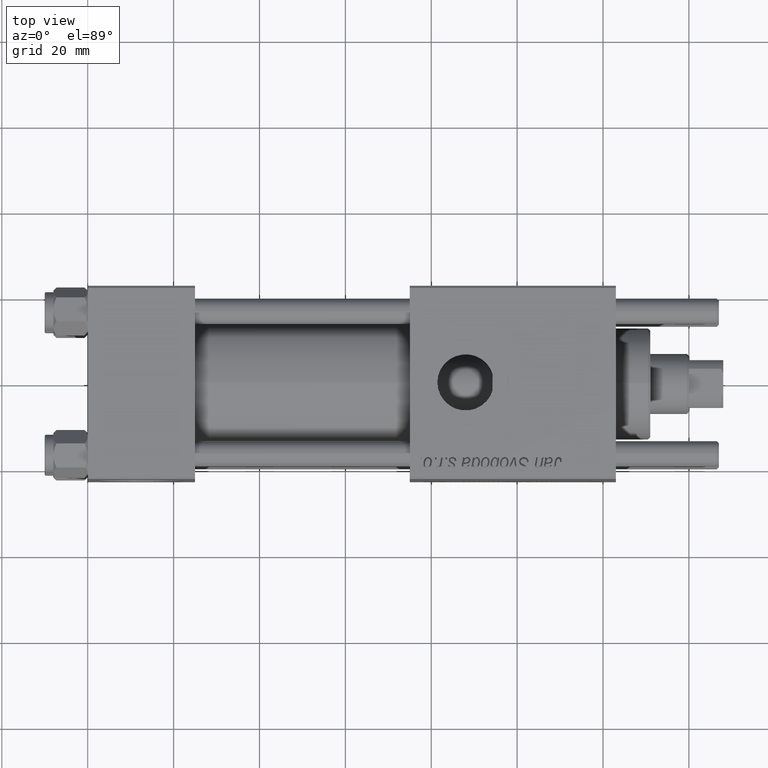
[diagram: clean part render]
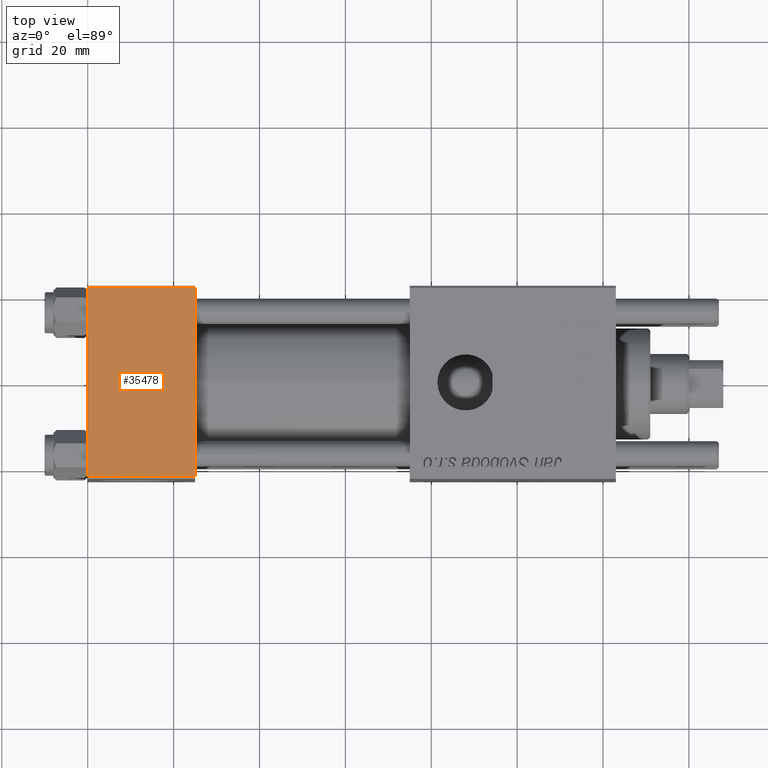
[diagram: same view with one face highlighted and labeled with its STEP entity id]
A machine part, top view. The second image highlights one B-rep face of the part: STEP entity #35478.
In plain terms, the highlighted planar face has unit normal (0, 0, -1).
Its self-contained STEP definition (entity closure, byte-faithful):
#536 = FACE_OUTER_BOUND ( 'NONE', #34976, .T. ) ;
#1600 = LINE ( 'NONE', #32297, #39583 ) ;
#9929 = CARTESIAN_POINT ( 'NONE',  ( 0.000000000000000000, -21.99999999999997868, 22.50000000000000000 ) ) ;
#11458 = EDGE_CURVE ( 'NONE', #18319, #47440, #45857, .T. ) ;
#12844 = CARTESIAN_POINT ( 'NONE',  ( 0.000000000000000000, 22.50000000000000000, 22.50000000000000355 ) ) ;
#17118 = VECTOR ( 'NONE', #48361, 1000.000000000000000 ) ;
#17925 = VERTEX_POINT ( 'NONE', #32419 ) ;
#18319 = VERTEX_POINT ( 'NONE', #9929 ) ;
#23707 = DIRECTION ( 'NONE',  ( -1.000000000000000000, 0.000000000000000000, 0.000000000000000000 ) ) ;
#26650 = DIRECTION ( 'NONE',  ( 0.000000000000000000, 1.000000000000000000, 7.709882115452476934E-17 ) ) ;
#27153 = VERTEX_POINT ( 'NONE', #31508 ) ;
#27516 = EDGE_CURVE ( 'NONE', #27153, #47440, #28433, .T. ) ;
#28134 = CARTESIAN_POINT ( 'NONE',  ( 25.00000000000000000, 22.50000000000000000, 22.50000000000000355 ) ) ;
#28433 = LINE ( 'NONE', #28134, #17118 ) ;
#30061 = AXIS2_PLACEMENT_3D ( 'NONE', #35535, #49600, #26650 ) ;
#30626 = DIRECTION ( 'NONE',  ( 0.000000000000000000, -1.000000000000000000, -7.709882115452476934E-17 ) ) ;
#31210 = LINE ( 'NONE', #12844, #33721 ) ;
#31508 = CARTESIAN_POINT ( 'NONE',  ( 25.00000000000000000, 21.99999999999999289, 22.50000000000000355 ) ) ;
#32297 = CARTESIAN_POINT ( 'NONE',  ( 0.000000000000000000, 21.99999999999999289, 22.50000000000000355 ) ) ;
#32419 = CARTESIAN_POINT ( 'NONE',  ( 0.000000000000000000, 21.99999999999999289, 22.50000000000000355 ) ) ;
#32924 = DIRECTION ( 'NONE',  ( 1.000000000000000000, 0.000000000000000000, 0.000000000000000000 ) ) ;
#33721 = VECTOR ( 'NONE', #30626, 1000.000000000000000 ) ;
#34976 = EDGE_LOOP ( 'NONE', ( #40951, #37560, #37272, #44680 ) ) ;
#35478 = ADVANCED_FACE ( 'NONE', ( #536 ), #40427, .F. ) ;
#35535 = CARTESIAN_POINT ( 'NONE',  ( 25.00000000000000000, 22.50000000000000000, 22.50000000000000355 ) ) ;
#37220 = CARTESIAN_POINT ( 'NONE',  ( 25.00000000000000000, -21.99999999999999289, 22.50000000000000000 ) ) ;
#37272 = ORIENTED_EDGE ( 'NONE', *, *, #27516, .F. ) ;
#37560 = ORIENTED_EDGE ( 'NONE', *, *, #11458, .T. ) ;
#39583 = VECTOR ( 'NONE', #23707, 1000.000000000000000 ) ;
#40427 = PLANE ( 'NONE',  #30061 ) ;
#40951 = ORIENTED_EDGE ( 'NONE', *, *, #52757, .T. ) ;
#43503 = CARTESIAN_POINT ( 'NONE',  ( 25.00000000000000000, -21.99999999999997868, 22.50000000000000000 ) ) ;
#44680 = ORIENTED_EDGE ( 'NONE', *, *, #46581, .T. ) ;
#45857 = LINE ( 'NONE', #37220, #47986 ) ;
#46581 = EDGE_CURVE ( 'NONE', #27153, #17925, #1600, .T. ) ;
#47440 = VERTEX_POINT ( 'NONE', #43503 ) ;
#47986 = VECTOR ( 'NONE', #32924, 1000.000000000000000 ) ;
#48361 = DIRECTION ( 'NONE',  ( 0.000000000000000000, -1.000000000000000000, -7.709882115452476934E-17 ) ) ;
#49600 = DIRECTION ( 'NONE',  ( 0.000000000000000000, 7.709882115452476934E-17, -1.000000000000000000 ) ) ;
#52757 = EDGE_CURVE ( 'NONE', #17925, #18319, #31210, .T. ) ;